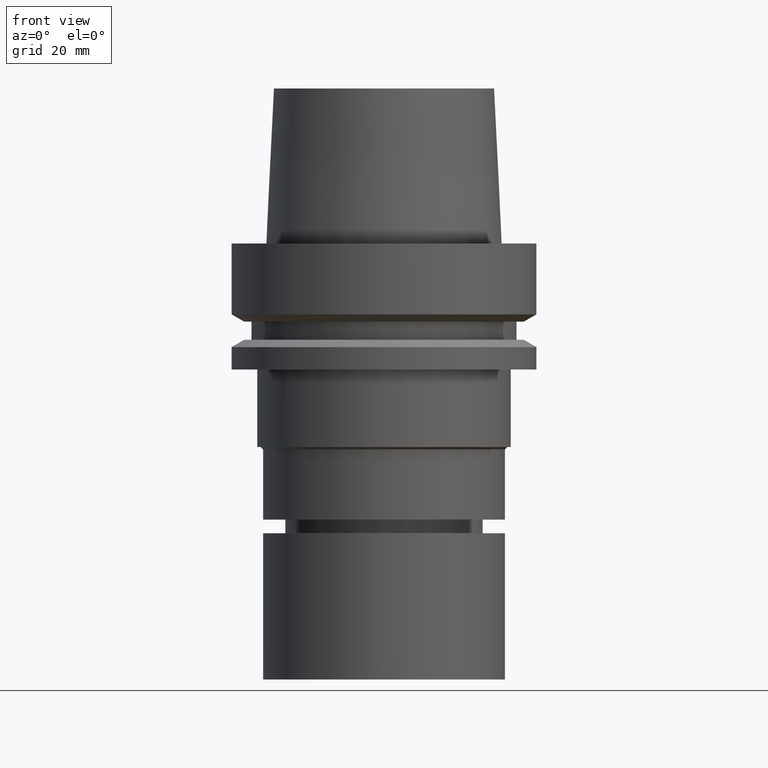
[diagram: clean part render]
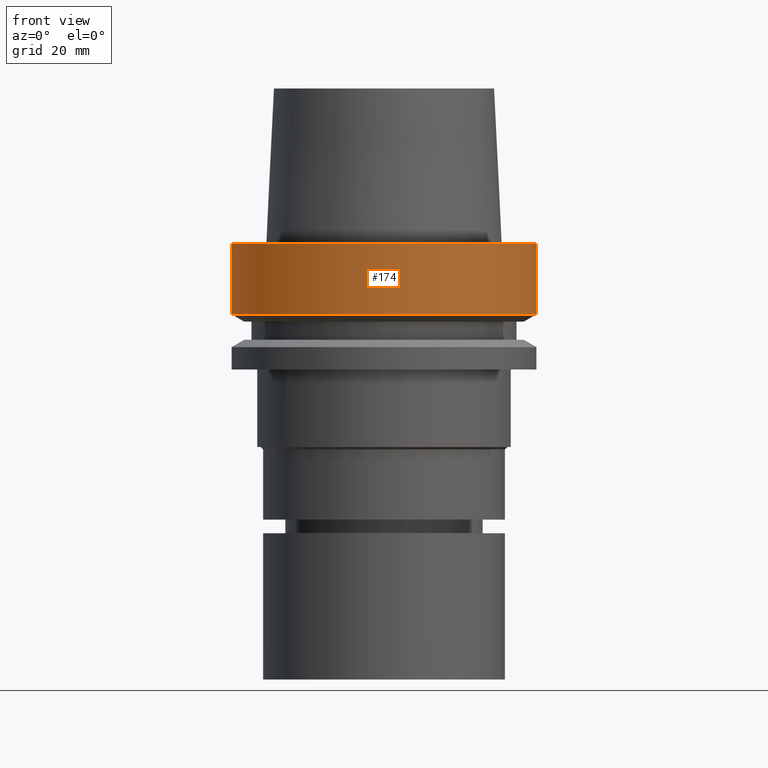
[diagram: same view with one face highlighted and labeled with its STEP entity id]
A machine part, front view. The second image highlights one B-rep face of the part: STEP entity #174.
In plain terms, the highlighted cylindrical surface (bore or boss wall) has radius 31.5 mm, axis along (-0, -0, 1).
Its self-contained STEP definition (entity closure, byte-faithful):
#100=EDGE_CURVE('Unnamed[1]',#249,#249,#250,.T.);
#149=EDGE_CURVE('Unnamed[1]',#323,#323,#324,.T.);
#174=ADVANCED_FACE('Unnamed[1]',(#363,#364),#365,.T.);
#249=VERTEX_POINT('',#456);
#250=CIRCLE('',#457,31.5000000000001);
#323=VERTEX_POINT('',#549);
#324=CIRCLE('',#550,31.5);
#363=FACE_BOUND('',#598,.T.);
#364=FACE_BOUND('',#599,.T.);
#365=CYLINDRICAL_SURFACE('',#600,31.5);
#456=CARTESIAN_POINT('',(-3.88267476788467E-031,31.5000000000001,3.85763741731417E-015));
#457=AXIS2_PLACEMENT_3D('',#682,#683,#684);
#549=CARTESIAN_POINT('',(8.95369947681261E-016,31.5,-14.6225009252407));
#550=AXIS2_PLACEMENT_3D('',#762,#763,#764);
#598=EDGE_LOOP('',(#808));
#599=EDGE_LOOP('',(#809));
#600=AXIS2_PLACEMENT_3D('',#810,#811,#812);
#682=CARTESIAN_POINT('',(0.0,0.0,0.0));
#683=DIRECTION('',(-6.12323399573677E-017,-1.22464679914735E-016,1.0));
#684=DIRECTION('',(-1.23259516440783E-032,1.0,1.22464679914735E-016));
#762=CARTESIAN_POINT('',(8.95369947681262E-016,1.79073989536252E-015,-14.6225009252407));
#763=DIRECTION('',(-6.12323399573677E-017,-1.22464679914735E-016,1.0));
#764=DIRECTION('',(-1.23259516440783E-032,1.0,1.22464679914735E-016));
#808=ORIENTED_EDGE('',*,*,#100,.F.);
#809=ORIENTED_EDGE('',*,*,#149,.T.);
#810=CARTESIAN_POINT('',(4.47684973840631E-016,8.95369947681262E-016,-7.31125046262035));
#811=DIRECTION('',(-6.12323399573677E-017,-1.22464679914735E-016,1.0));
#812=DIRECTION('',(-1.23259516440783E-032,1.0,1.22464679914735E-016));